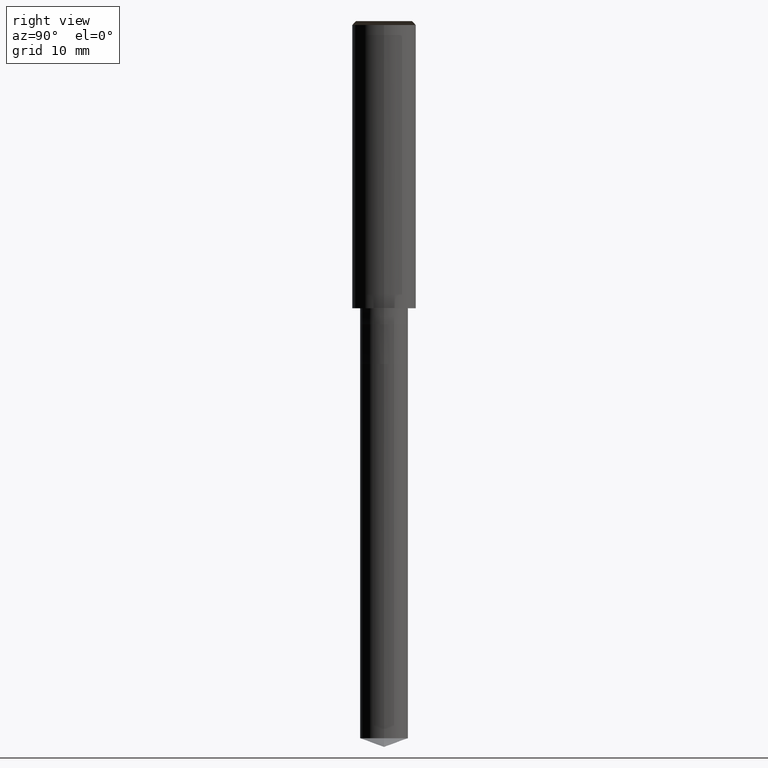
[diagram: clean part render]
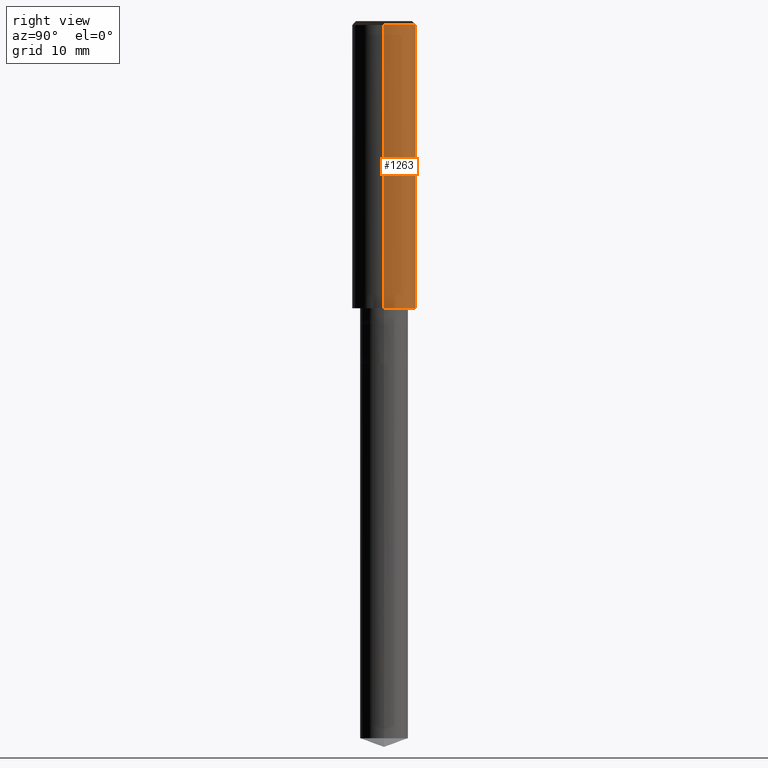
[diagram: same view with one face highlighted and labeled with its STEP entity id]
A machine part, right view. The second image highlights one B-rep face of the part: STEP entity #1263.
In plain terms, the highlighted face is a freeform B-spline surface patch.
Its self-contained STEP definition (entity closure, byte-faithful):
#1024=CARTESIAN_POINT('',(4.0,0.0,0.0));
#1025=CARTESIAN_POINT('',(4.0,4.0,0.0));
#1026=CARTESIAN_POINT('',(0.0,4.0,0.0));
#1027=CARTESIAN_POINT('',(-4.0,4.0,0.0));
#1028=CARTESIAN_POINT('',(-4.0,0.0,0.0));
#1029=CARTESIAN_POINT('',(4.0,0.0,35.5));
#1030=CARTESIAN_POINT('',(4.0,4.0,35.5));
#1031=CARTESIAN_POINT('',(0.0,4.0,35.5));
#1032=CARTESIAN_POINT('',(-4.0,4.0,35.5));
#1033=CARTESIAN_POINT('',(-4.0,0.0,35.5));
#1244=(
BOUNDED_SURFACE()
B_SPLINE_SURFACE(1,2,(
(#1024,#1025,#1026,#1027,#1028),
(#1029,#1030,#1031,#1032,#1033)
), .UNSPECIFIED.,.F.,.F.,.F.)
B_SPLINE_SURFACE_WITH_KNOTS((2,2),(3,2,3),(
0.0,1.0),(
0.0,0.5,1.0), .UNSPECIFIED.)
GEOMETRIC_REPRESENTATION_ITEM()
RATIONAL_B_SPLINE_SURFACE(((1.0,0.707106781187,1.0,0.707106781187,1.0),
(1.0,0.707106781187,1.0,0.707106781187,1.0)
))
REPRESENTATION_ITEM('')
SURFACE()
);
#1245=(
BOUNDED_CURVE()
B_SPLINE_CURVE(2,(#1028,#1027,#1026,#1025,#1024),.UNSPECIFIED.,.F.,.F.)
B_SPLINE_CURVE_WITH_KNOTS((3,2,3),
(0.0,0.5,1.0),.UNSPECIFIED.)
CURVE()
GEOMETRIC_REPRESENTATION_ITEM()
RATIONAL_B_SPLINE_CURVE((1.0,0.707106781187,1.0,0.707106781187,1.0))
REPRESENTATION_ITEM('')
);
#1246=(
BOUNDED_CURVE()
B_SPLINE_CURVE(1,(#1024,#1029),.UNSPECIFIED.,.F.,.F.)
B_SPLINE_CURVE_WITH_KNOTS((2,2),
(0.0,1.0),.UNSPECIFIED.)
CURVE()
GEOMETRIC_REPRESENTATION_ITEM()
RATIONAL_B_SPLINE_CURVE((1.0,1.0))
REPRESENTATION_ITEM('')
);
#1247=(
BOUNDED_CURVE()
B_SPLINE_CURVE(2,(#1029,#1030,#1031,#1032,#1033),.UNSPECIFIED.,.F.,.F.)
B_SPLINE_CURVE_WITH_KNOTS((3,2,3),
(0.0,0.5,1.0),.UNSPECIFIED.)
CURVE()
GEOMETRIC_REPRESENTATION_ITEM()
RATIONAL_B_SPLINE_CURVE((1.0,0.707106781187,1.0,0.707106781187,1.0))
REPRESENTATION_ITEM('')
);
#1248=(
BOUNDED_CURVE()
B_SPLINE_CURVE(1,(#1033,#1028),.UNSPECIFIED.,.F.,.F.)
B_SPLINE_CURVE_WITH_KNOTS((2,2),
(0.0,1.0),.UNSPECIFIED.)
CURVE()
GEOMETRIC_REPRESENTATION_ITEM()
RATIONAL_B_SPLINE_CURVE((1.0,1.0))
REPRESENTATION_ITEM('')
);
#1249=VERTEX_POINT('',#1024);
#1250=VERTEX_POINT('',#1028);
#1251=VERTEX_POINT('',#1029);
#1252=VERTEX_POINT('',#1033);
#1253=EDGE_CURVE('',#1250,#1249,#1245,.T.);
#1254=EDGE_CURVE('',#1249,#1251,#1246,.T.);
#1255=EDGE_CURVE('',#1251,#1252,#1247,.T.);
#1256=EDGE_CURVE('',#1252,#1250,#1248,.T.);
#1257=ORIENTED_EDGE('',*,*,#1253,.T.);
#1258=ORIENTED_EDGE('',*,*,#1254,.T.);
#1259=ORIENTED_EDGE('',*,*,#1255,.T.);
#1260=ORIENTED_EDGE('',*,*,#1256,.T.);
#1261=EDGE_LOOP('',(#1257,#1258,#1259,#1260));
#1262=FACE_OUTER_BOUND('',#1261,.T.);
#1263=ADVANCED_FACE('',(#1262),#1244,.T.);